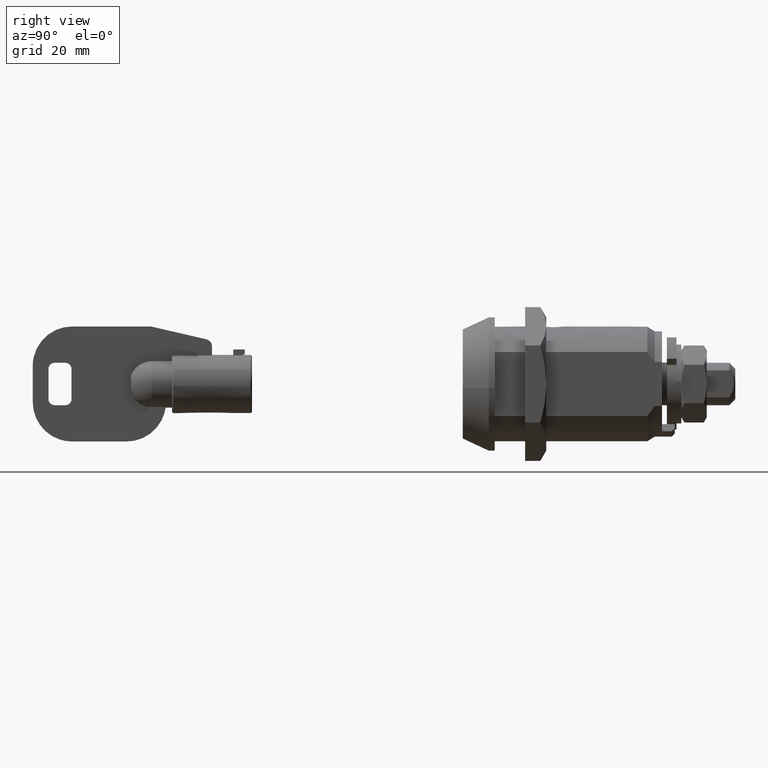
[diagram: clean part render]
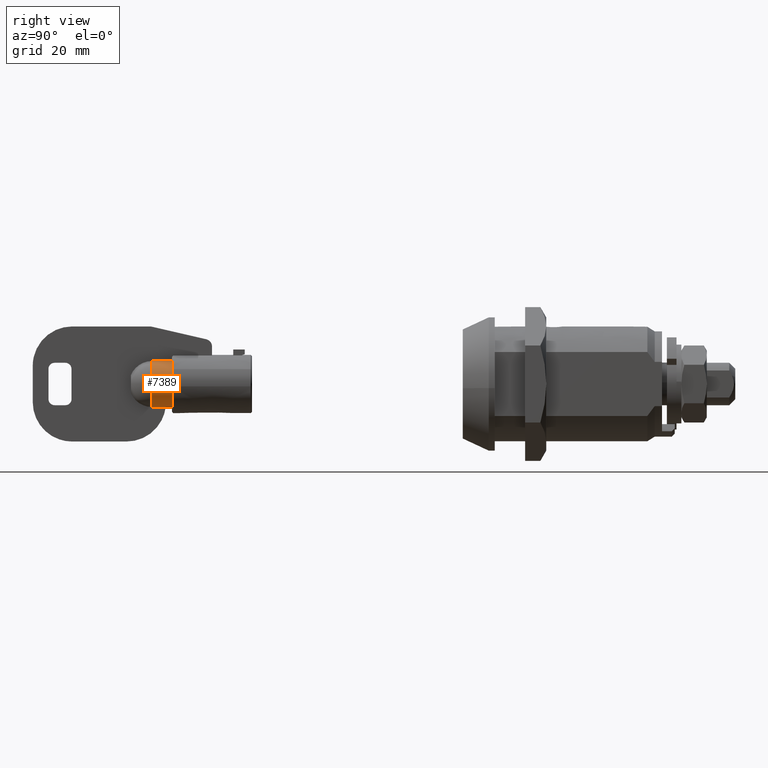
[diagram: same view with one face highlighted and labeled with its STEP entity id]
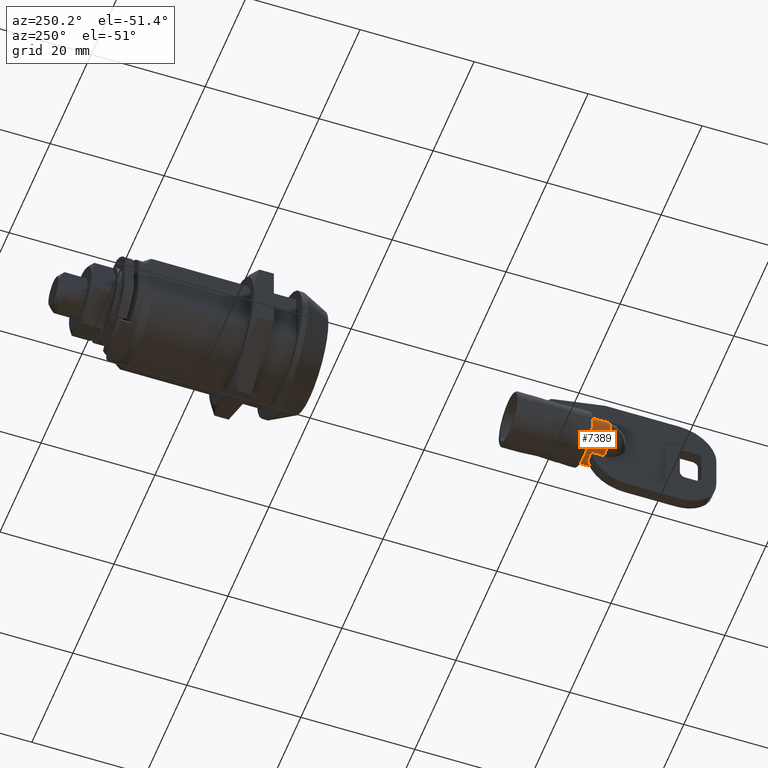
[diagram: same view with one face highlighted and labeled with its STEP entity id]
A machine part, right view. The second image highlights one B-rep face of the part: STEP entity #7389.
A second angle (auxiliary view) of the same face is appended — the face is thin or edge-on in the first view.
In plain terms, the highlighted face is a freeform B-spline surface patch.
Its self-contained STEP definition (entity closure, byte-faithful):
#6670=CARTESIAN_POINT('',(-49.051310482507802,0.900000000000000,-3.794727025760245));
#6671=VERTEX_POINT('',#6670);
#6677=CARTESIAN_POINT('',(-49.051310482507802,0.0,-3.900000912138290));
#6678=VERTEX_POINT('',#6677);
#6679=CARTESIAN_POINT('',(-49.051310482507802,0.900000000000000,-3.794727025760245));
#6680=CARTESIAN_POINT('',(-49.051310482507802,0.456156186591983,-3.899997456069093));
#6681=CARTESIAN_POINT('',(-49.051310482507802,0.0,-3.900000912138290));
#6689=(BOUNDED_CURVE()B_SPLINE_CURVE(2,(#6679,#6680,#6681),.UNSPECIFIED.,.F.,.U.)CURVE()GEOMETRIC_REPRESENTATION_ITEM()QUASI_UNIFORM_CURVE()RATIONAL_B_SPLINE_CURVE((1.0,0.993229184684527,1.0))REPRESENTATION_ITEM(''));
#6690=EDGE_CURVE('',#6671,#6678,#6689,.T.);
#7061=CARTESIAN_POINT('',(-49.051309917129899,-0.900000000000000,-3.794727025760245));
#7062=VERTEX_POINT('',#7061);
#7063=CARTESIAN_POINT('',(-49.051310482507802,0.0,-3.900000912138290));
#7064=CARTESIAN_POINT('',(-49.051310199818857,-0.456156186591984,-3.899997456069093));
#7065=CARTESIAN_POINT('',(-49.051309917129899,-0.900000000000000,-3.794727025760245));
#7073=(BOUNDED_CURVE()B_SPLINE_CURVE(2,(#7063,#7064,#7065),.UNSPECIFIED.,.F.,.U.)CURVE()GEOMETRIC_REPRESENTATION_ITEM()QUASI_UNIFORM_CURVE()RATIONAL_B_SPLINE_CURVE((1.0,0.993229184684527,1.0))REPRESENTATION_ITEM(''));
#7074=EDGE_CURVE('',#6678,#7062,#7073,.T.);
#7126=CARTESIAN_POINT('',(-51.295544049972499,-0.900000000000000,-3.794727025760245));
#7127=VERTEX_POINT('',#7126);
#7128=CARTESIAN_POINT('',(-51.295544049972499,-0.900000000000000,3.794727025760245));
#7129=VERTEX_POINT('',#7128);
#7130=CARTESIAN_POINT('',(-51.295544049972499,-0.899999999999998,-3.794727025760244));
#7131=CARTESIAN_POINT('',(-51.295544049972506,-3.899993999999896,-3.083214819039925));
#7132=CARTESIAN_POINT('',(-51.295544049972499,-3.899993999999895,0.0));
#7133=CARTESIAN_POINT('',(-51.295544049972506,-3.899993999999896,3.083214819039924));
#7134=CARTESIAN_POINT('',(-51.295544049972499,-0.900000000000000,3.794727025760243));
#7142=(BOUNDED_CURVE()B_SPLINE_CURVE(2,(#7130,#7131,#7132,#7133,#7134),.UNSPECIFIED.,.F.,.U.)B_SPLINE_CURVE_WITH_KNOTS((3,2,3),(0.0,0.500000000000000,1.0),.UNSPECIFIED.)CURVE()GEOMETRIC_REPRESENTATION_ITEM()RATIONAL_B_SPLINE_CURVE((1.0,0.784464653696828,1.0,0.784464653696828,1.0))REPRESENTATION_ITEM(''));
#7143=EDGE_CURVE('',#7127,#7129,#7142,.T.);
#7281=CARTESIAN_POINT('',(-47.988700000000001,0.900000000000000,3.794727025760245));
#7282=VERTEX_POINT('',#7281);
#7283=CARTESIAN_POINT('',(-47.988700000000001,-0.900000000000000,3.794727025760245));
#7284=VERTEX_POINT('',#7283);
#7285=CARTESIAN_POINT('',(-47.988700000000001,0.900000000000001,3.794727025760248));
#7286=CARTESIAN_POINT('',(-47.988699999999987,4.276751759370630,2.993858725404781));
#7287=CARTESIAN_POINT('',(-47.988700000000001,3.873587860894448,-0.453067637297560));
#7288=CARTESIAN_POINT('',(-47.988699999999987,3.470423962418266,-3.899993999999900));
#7289=CARTESIAN_POINT('',(-47.988700000000001,0.0,-3.899993999999900));
#7290=CARTESIAN_POINT('',(-47.988699999999987,-3.470423962418264,-3.899993999999900));
#7291=CARTESIAN_POINT('',(-47.988700000000001,-3.873587860894448,-0.453067637297562));
#7292=CARTESIAN_POINT('',(-47.988699999999987,-4.276751759370633,2.993858725404781));
#7293=CARTESIAN_POINT('',(-47.988700000000001,-0.900000000000001,3.794727025760248));
#7301=(BOUNDED_CURVE()B_SPLINE_CURVE(2,(#7285,#7286,#7287,#7288,#7289,#7290,#7291,#7292,#7293),.UNSPECIFIED.,.F.,.U.)B_SPLINE_CURVE_WITH_KNOTS((3,2,2,2,3),(0.0,0.250000000000000,0.500000000000000,0.750000000000000,1.0),.UNSPECIFIED.)CURVE()GEOMETRIC_REPRESENTATION_ITEM()RATIONAL_B_SPLINE_CURVE((1.0,0.747051326140259,1.0,0.747051326140259,1.0,0.747051326140259,1.0,0.747051326140259,1.0))REPRESENTATION_ITEM(''));
#7302=EDGE_CURVE('',#7282,#7284,#7301,.T.);
#7318=CARTESIAN_POINT('',(-47.906028898750677,-0.800357219282181,3.816985921061028));
#7319=CARTESIAN_POINT('',(-51.380281928753050,-0.800357219282181,3.816985921061028));
#7320=CARTESIAN_POINT('',(-47.906028898750684,-4.267463120187767,3.089992608747664));
#7321=CARTESIAN_POINT('',(-51.380281928753050,-4.267463120187767,3.089992608747664));
#7322=CARTESIAN_POINT('',(-47.906028898750677,-3.876124115012287,-0.430830645446015));
#7323=CARTESIAN_POINT('',(-51.380281928753050,-3.876124115012287,-0.430830645446015));
#7324=CARTESIAN_POINT('',(-47.906028898750684,-3.484785109836807,-3.951653899639693));
#7325=CARTESIAN_POINT('',(-51.380281928753050,-3.484785109836807,-3.951653899639693));
#7326=CARTESIAN_POINT('',(-47.906028898750677,0.057337153951901,-3.899572495904123));
#7327=CARTESIAN_POINT('',(-51.380281928753050,0.057337153951901,-3.899572495904123));
#7328=CARTESIAN_POINT('',(-47.906028898750684,3.599459417740607,-3.847491092168553));
#7329=CARTESIAN_POINT('',(-51.380281928753050,3.599459417740607,-3.847491092168553));
#7330=CARTESIAN_POINT('',(-47.906028898750677,3.887115160348063,-0.316684275308184));
#7331=CARTESIAN_POINT('',(-51.380281928753050,3.887115160348063,-0.316684275308184));
#7332=CARTESIAN_POINT('',(-47.906028898750684,4.174770902955518,3.214122541552186));
#7333=CARTESIAN_POINT('',(-51.380281928753050,4.174770902955518,3.214122541552186));
#7334=CARTESIAN_POINT('',(-47.906028898750677,0.687789801400763,3.838866810547653));
#7335=CARTESIAN_POINT('',(-51.380281928753050,0.687789801400763,3.838866810547653));
#7343=(BOUNDED_SURFACE()B_SPLINE_SURFACE(1,2,((#7318,#7320,#7322,#7324,#7326,#7328,#7330,#7332,#7334),(#7319,#7321,#7323,#7325,#7327,#7329,#7331,#7333,#7335)),.UNSPECIFIED.,.F.,.F.,.U.)B_SPLINE_SURFACE_WITH_KNOTS((2,2),(3,2,2,2,3),(0.0,3.474253030002366),(0.0,6.027351338033077,12.054702676066150,18.082054014099231,24.109405352132310),.UNSPECIFIED.)GEOMETRIC_REPRESENTATION_ITEM()RATIONAL_B_SPLINE_SURFACE(((1.0,0.740218127486832,1.0,0.740218127486832,1.0,0.740218127486832,1.0,0.740218127486832,1.0),(1.0,0.740218127486832,1.0,0.740218127486832,1.0,0.740218127486832,1.0,0.740218127486832,1.0)))REPRESENTATION_ITEM('')SURFACE());
#7344=CARTESIAN_POINT('',(-51.295544049972499,0.900000000000000,3.794727025760245));
#7345=VERTEX_POINT('',#7344);
#7346=CARTESIAN_POINT('',(-51.295544049972499,0.900000000000000,-3.794727025760245));
#7347=VERTEX_POINT('',#7346);
#7348=CARTESIAN_POINT('',(-51.295544049972499,0.899999999999999,3.794727025760243));
#7349=CARTESIAN_POINT('',(-51.295544049972499,3.899993999999896,3.083214819039924));
#7350=CARTESIAN_POINT('',(-51.295544049972499,3.899993999999895,0.0));
#7351=CARTESIAN_POINT('',(-51.295544049972499,3.899993999999896,-3.083214819039924));
#7352=CARTESIAN_POINT('',(-51.295544049972499,0.899999999999999,-3.794727025760243));
#7360=(BOUNDED_CURVE()B_SPLINE_CURVE(2,(#7348,#7349,#7350,#7351,#7352),.UNSPECIFIED.,.F.,.U.)B_SPLINE_CURVE_WITH_KNOTS((3,2,3),(0.0,0.500000000000000,1.0),.UNSPECIFIED.)CURVE()GEOMETRIC_REPRESENTATION_ITEM()RATIONAL_B_SPLINE_CURVE((1.0,0.784464653696828,1.0,0.784464653696828,1.0))REPRESENTATION_ITEM(''));
#7361=EDGE_CURVE('',#7345,#7347,#7360,.T.);
#7362=ORIENTED_EDGE('',*,*,#7361,.F.);
#7363=CARTESIAN_POINT('',(-51.295544049972499,0.900000000000000,3.794727025760245));
#7364=CARTESIAN_POINT('',(-47.988700000000001,0.900000000000000,3.794727025760245));
#7365=QUASI_UNIFORM_CURVE('',1,(#7363,#7364),.UNSPECIFIED.,.F.,.U.);
#7366=EDGE_CURVE('',#7345,#7282,#7365,.T.);
#7367=ORIENTED_EDGE('',*,*,#7366,.T.);
#7368=ORIENTED_EDGE('',*,*,#7302,.T.);
#7369=CARTESIAN_POINT('',(-51.295544049972499,-0.900000000000000,3.794727025760245));
#7370=CARTESIAN_POINT('',(-47.988700000000001,-0.900000000000000,3.794727025760245));
#7371=QUASI_UNIFORM_CURVE('',1,(#7369,#7370),.UNSPECIFIED.,.F.,.U.);
#7372=EDGE_CURVE('',#7129,#7284,#7371,.T.);
#7373=ORIENTED_EDGE('',*,*,#7372,.F.);
#7374=ORIENTED_EDGE('',*,*,#7143,.F.);
#7375=CARTESIAN_POINT('',(-49.051309917129899,-0.900000000000000,-3.794727025760245));
#7376=CARTESIAN_POINT('',(-51.295544049972499,-0.900000000000000,-3.794727025760245));
#7377=QUASI_UNIFORM_CURVE('',1,(#7375,#7376),.UNSPECIFIED.,.F.,.U.);
#7378=EDGE_CURVE('',#7062,#7127,#7377,.T.);
#7379=ORIENTED_EDGE('',*,*,#7378,.F.);
#7380=ORIENTED_EDGE('',*,*,#7074,.F.);
#7381=ORIENTED_EDGE('',*,*,#6690,.F.);
#7382=CARTESIAN_POINT('',(-49.051310482507802,0.900000000000000,-3.794727025760245));
#7383=CARTESIAN_POINT('',(-51.295544049972499,0.900000000000000,-3.794727025760245));
#7384=QUASI_UNIFORM_CURVE('',1,(#7382,#7383),.UNSPECIFIED.,.F.,.U.);
#7385=EDGE_CURVE('',#6671,#7347,#7384,.T.);
#7386=ORIENTED_EDGE('',*,*,#7385,.T.);
#7387=EDGE_LOOP('',(#7362,#7367,#7368,#7373,#7374,#7379,#7380,#7381,#7386));
#7388=FACE_OUTER_BOUND('',#7387,.T.);
#7389=ADVANCED_FACE('',(#7388),#7343,.T.);